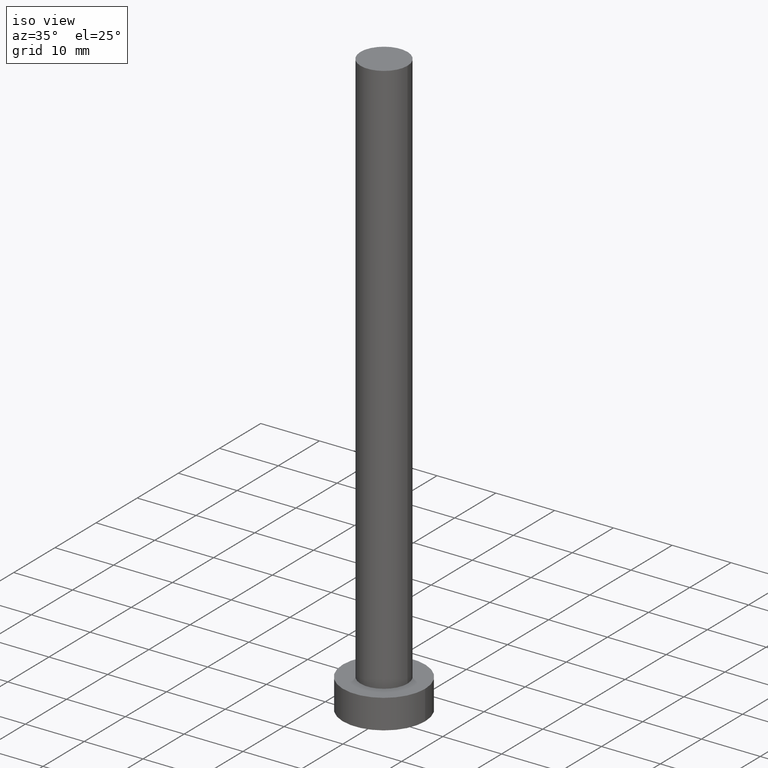
[diagram: clean part render]
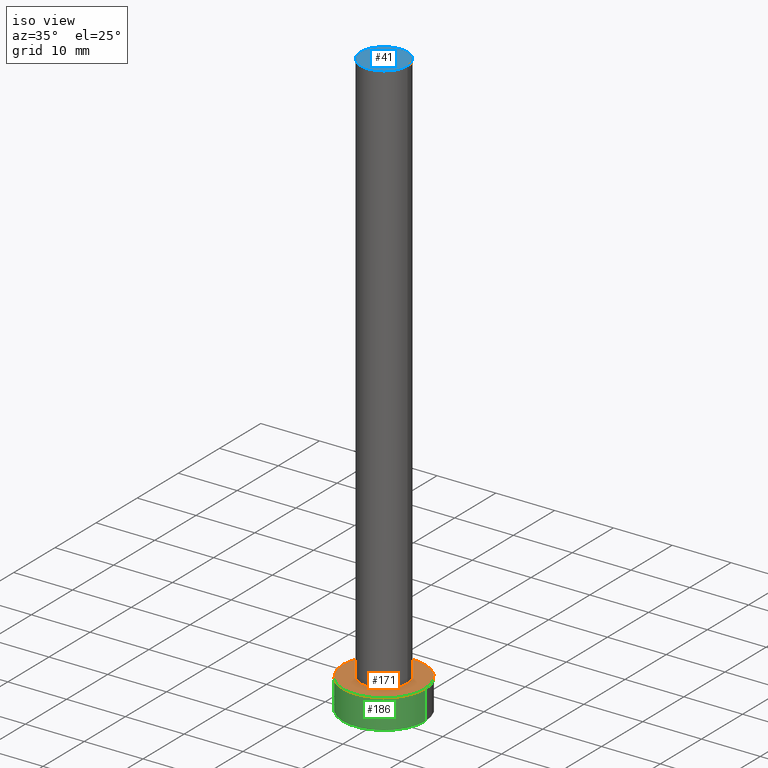
[diagram: same view with three faces highlighted in distinct colors, each labeled with its STEP entity id]
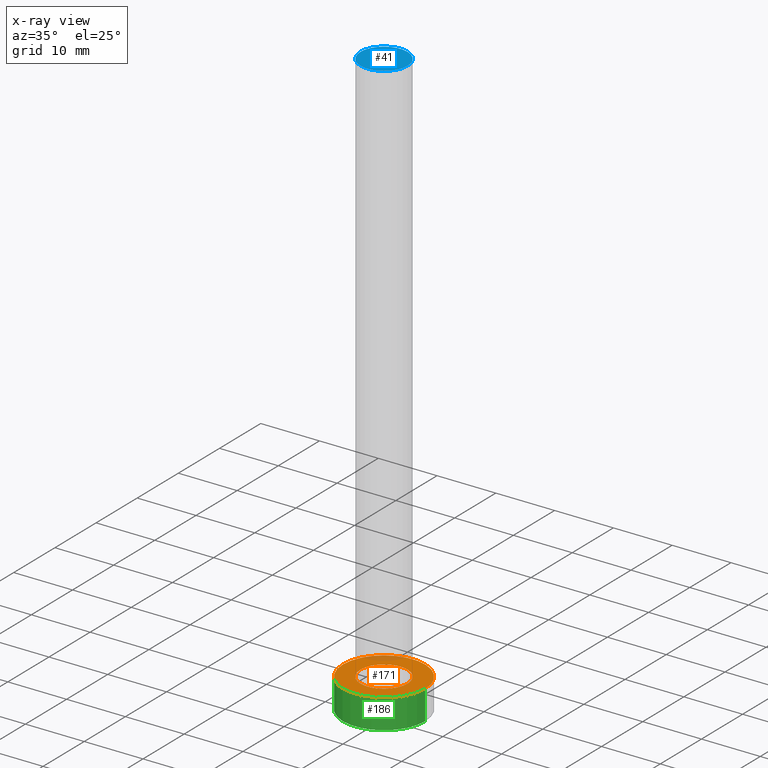
[diagram: x-ray of the same camera — body ghosted, the three highlighted faces saturated]
A machine part, iso view with three faces highlighted in distinct colors.
The next image is the same camera in x-ray (body ghosted, the three faces saturated) — at least one of them is partly hidden behind the body in this view.
Their STEP definitions:

[orange] entity #171 — the highlighted planar face has unit normal (0, 0, 1).
#11 = PLANE ( 'NONE',  #225 ) ;
#16 = VERTEX_POINT ( 'NONE', #173 ) ;
#24 = CIRCLE ( 'NONE', #157, 7.000000000000000000 ) ;
#25 = DIRECTION ( 'NONE',  ( 1.000000000000000000, 0.000000000000000000, 0.000000000000000000 ) ) ;
#61 = CARTESIAN_POINT ( 'NONE',  ( 0.000000000000000000, 0.000000000000000000, 5.000000000000000000 ) ) ;
#67 = CARTESIAN_POINT ( 'NONE',  ( 0.000000000000000000, 0.000000000000000000, 5.000000000000000000 ) ) ;
#69 = EDGE_CURVE ( 'NONE', #198, #204, #102, .T. ) ;
#70 = CARTESIAN_POINT ( 'NONE',  ( 4.000000000000000000, 4.898587196589412829E-16, 5.000000000000000000 ) ) ;
#77 = ORIENTED_EDGE ( 'NONE', *, *, #85, .F. ) ;
#85 = EDGE_CURVE ( 'NONE', #204, #198, #89, .T. ) ;
#88 = AXIS2_PLACEMENT_3D ( 'NONE', #141, #218, #180 ) ;
#89 = CIRCLE ( 'NONE', #88, 4.000000000000000000 ) ;
#90 = EDGE_LOOP ( 'NONE', ( #172, #222 ) ) ;
#97 = DIRECTION ( 'NONE',  ( 0.000000000000000000, 0.000000000000000000, 1.000000000000000000 ) ) ;
#101 = DIRECTION ( 'NONE',  ( 0.000000000000000000, 0.000000000000000000, 1.000000000000000000 ) ) ;
#102 = CIRCLE ( 'NONE', #203, 4.000000000000000000 ) ;
#106 = CARTESIAN_POINT ( 'NONE',  ( 7.000000000000000000, 8.572527594031473190E-16, 5.000000000000000000 ) ) ;
#115 = EDGE_CURVE ( 'NONE', #122, #16, #24, .T. ) ;
#122 = VERTEX_POINT ( 'NONE', #106 ) ;
#123 = CARTESIAN_POINT ( 'NONE',  ( 0.000000000000000000, 0.000000000000000000, 5.000000000000000000 ) ) ;
#125 = AXIS2_PLACEMENT_3D ( 'NONE', #123, #202, #25 ) ;
#141 = CARTESIAN_POINT ( 'NONE',  ( 0.000000000000000000, 0.000000000000000000, 5.000000000000000000 ) ) ;
#143 = DIRECTION ( 'NONE',  ( 1.000000000000000000, 0.000000000000000000, 0.000000000000000000 ) ) ;
#145 = CARTESIAN_POINT ( 'NONE',  ( 0.000000000000000000, 0.000000000000000000, 5.000000000000000000 ) ) ;
#146 = EDGE_LOOP ( 'NONE', ( #193, #77 ) ) ;
#148 = DIRECTION ( 'NONE',  ( 0.000000000000000000, 0.000000000000000000, 1.000000000000000000 ) ) ;
#157 = AXIS2_PLACEMENT_3D ( 'NONE', #67, #148, #143 ) ;
#159 = EDGE_CURVE ( 'NONE', #16, #122, #191, .T. ) ;
#162 = DIRECTION ( 'NONE',  ( 1.000000000000000000, 0.000000000000000000, 0.000000000000000000 ) ) ;
#171 = ADVANCED_FACE ( 'NONE', ( #228, #187 ), #11, .T. ) ;
#172 = ORIENTED_EDGE ( 'NONE', *, *, #159, .T. ) ;
#173 = CARTESIAN_POINT ( 'NONE',  ( -7.000000000000000000, 0.000000000000000000, 5.000000000000000000 ) ) ;
#180 = DIRECTION ( 'NONE',  ( 1.000000000000000000, 0.000000000000000000, 0.000000000000000000 ) ) ;
#187 = FACE_OUTER_BOUND ( 'NONE', #90, .T. ) ;
#191 = CIRCLE ( 'NONE', #125, 7.000000000000000000 ) ;
#193 = ORIENTED_EDGE ( 'NONE', *, *, #69, .F. ) ;
#198 = VERTEX_POINT ( 'NONE', #249 ) ;
#202 = DIRECTION ( 'NONE',  ( 0.000000000000000000, 0.000000000000000000, 1.000000000000000000 ) ) ;
#203 = AXIS2_PLACEMENT_3D ( 'NONE', #61, #97, #162 ) ;
#204 = VERTEX_POINT ( 'NONE', #70 ) ;
#218 = DIRECTION ( 'NONE',  ( 0.000000000000000000, 0.000000000000000000, 1.000000000000000000 ) ) ;
#222 = ORIENTED_EDGE ( 'NONE', *, *, #115, .T. ) ;
#223 = DIRECTION ( 'NONE',  ( 1.000000000000000000, 0.000000000000000000, -0.000000000000000000 ) ) ;
#225 = AXIS2_PLACEMENT_3D ( 'NONE', #145, #101, #223 ) ;
#228 = FACE_BOUND ( 'NONE', #146, .T. ) ;
#249 = CARTESIAN_POINT ( 'NONE',  ( -4.000000000000000000, 0.000000000000000000, 5.000000000000000000 ) ) ;

[blue] entity #41 — the highlighted planar face has unit normal (0, 0, 1).
#17 = DIRECTION ( 'NONE',  ( 0.000000000000000000, 0.000000000000000000, 1.000000000000000000 ) ) ;
#30 = PLANE ( 'NONE',  #116 ) ;
#31 = DIRECTION ( 'NONE',  ( 0.000000000000000000, 0.000000000000000000, 1.000000000000000000 ) ) ;
#35 = CIRCLE ( 'NONE', #182, 4.000000000000000000 ) ;
#36 = DIRECTION ( 'NONE',  ( 1.000000000000000000, 0.000000000000000000, 0.000000000000000000 ) ) ;
#41 = ADVANCED_FACE ( 'NONE', ( #50 ), #30, .T. ) ;
#50 = FACE_OUTER_BOUND ( 'NONE', #52, .T. ) ;
#52 = EDGE_LOOP ( 'NONE', ( #132, #174 ) ) ;
#68 = CARTESIAN_POINT ( 'NONE',  ( 4.000000000000000000, 4.898587196589412829E-16, 100.0000000000000000 ) ) ;
#81 = DIRECTION ( 'NONE',  ( 0.000000000000000000, 0.000000000000000000, 1.000000000000000000 ) ) ;
#100 = EDGE_CURVE ( 'NONE', #170, #112, #124, .T. ) ;
#108 = CARTESIAN_POINT ( 'NONE',  ( 0.000000000000000000, 0.000000000000000000, 100.0000000000000000 ) ) ;
#110 = DIRECTION ( 'NONE',  ( 1.000000000000000000, 0.000000000000000000, -0.000000000000000000 ) ) ;
#112 = VERTEX_POINT ( 'NONE', #68 ) ;
#116 = AXIS2_PLACEMENT_3D ( 'NONE', #108, #31, #110 ) ;
#121 = CARTESIAN_POINT ( 'NONE',  ( -4.000000000000000000, 0.000000000000000000, 100.0000000000000000 ) ) ;
#124 = CIRCLE ( 'NONE', #135, 4.000000000000000000 ) ;
#132 = ORIENTED_EDGE ( 'NONE', *, *, #100, .T. ) ;
#135 = AXIS2_PLACEMENT_3D ( 'NONE', #184, #81, #247 ) ;
#169 = CARTESIAN_POINT ( 'NONE',  ( 0.000000000000000000, 0.000000000000000000, 100.0000000000000000 ) ) ;
#170 = VERTEX_POINT ( 'NONE', #121 ) ;
#174 = ORIENTED_EDGE ( 'NONE', *, *, #246, .T. ) ;
#182 = AXIS2_PLACEMENT_3D ( 'NONE', #169, #17, #36 ) ;
#184 = CARTESIAN_POINT ( 'NONE',  ( 0.000000000000000000, 0.000000000000000000, 100.0000000000000000 ) ) ;
#246 = EDGE_CURVE ( 'NONE', #112, #170, #35, .T. ) ;
#247 = DIRECTION ( 'NONE',  ( 1.000000000000000000, 0.000000000000000000, 0.000000000000000000 ) ) ;

[green] entity #186 — the highlighted cylindrical surface (partial cylindrical patch) has radius 7 mm, axis along (-0, -0, -1).
#2 = DIRECTION ( 'NONE',  ( -0.000000000000000000, -0.000000000000000000, -1.000000000000000000 ) ) ;
#6 = AXIS2_PLACEMENT_3D ( 'NONE', #46, #82, #166 ) ;
#9 = AXIS2_PLACEMENT_3D ( 'NONE', #120, #201, #250 ) ;
#12 = CYLINDRICAL_SURFACE ( 'NONE', #6, 7.000000000000000000 ) ;
#16 = VERTEX_POINT ( 'NONE', #173 ) ;
#25 = DIRECTION ( 'NONE',  ( 1.000000000000000000, 0.000000000000000000, 0.000000000000000000 ) ) ;
#37 = ORIENTED_EDGE ( 'NONE', *, *, #130, .F. ) ;
#38 = EDGE_CURVE ( 'NONE', #16, #154, #151, .T. ) ;
#43 = CARTESIAN_POINT ( 'NONE',  ( 7.000000000000000000, 8.572527594031473190E-16, 5.000000000000000000 ) ) ;
#46 = CARTESIAN_POINT ( 'NONE',  ( 0.000000000000000000, 0.000000000000000000, 5.000000000000000000 ) ) ;
#64 = VECTOR ( 'NONE', #190, 1000.000000000000000 ) ;
#82 = DIRECTION ( 'NONE',  ( -0.000000000000000000, -0.000000000000000000, -1.000000000000000000 ) ) ;
#83 = EDGE_LOOP ( 'NONE', ( #37, #188, #104, #150 ) ) ;
#103 = CARTESIAN_POINT ( 'NONE',  ( -7.000000000000000000, 0.000000000000000000, 0.000000000000000000 ) ) ;
#104 = ORIENTED_EDGE ( 'NONE', *, *, #38, .T. ) ;
#106 = CARTESIAN_POINT ( 'NONE',  ( 7.000000000000000000, 8.572527594031473190E-16, 5.000000000000000000 ) ) ;
#114 = CARTESIAN_POINT ( 'NONE',  ( 7.000000000000000000, 8.572527594031473190E-16, 0.000000000000000000 ) ) ;
#120 = CARTESIAN_POINT ( 'NONE',  ( 0.000000000000000000, 0.000000000000000000, 0.000000000000000000 ) ) ;
#122 = VERTEX_POINT ( 'NONE', #106 ) ;
#123 = CARTESIAN_POINT ( 'NONE',  ( 0.000000000000000000, 0.000000000000000000, 5.000000000000000000 ) ) ;
#125 = AXIS2_PLACEMENT_3D ( 'NONE', #123, #202, #25 ) ;
#130 = EDGE_CURVE ( 'NONE', #122, #227, #221, .T. ) ;
#147 = CIRCLE ( 'NONE', #9, 7.000000000000000000 ) ;
#150 = ORIENTED_EDGE ( 'NONE', *, *, #220, .T. ) ;
#151 = LINE ( 'NONE', #175, #155 ) ;
#154 = VERTEX_POINT ( 'NONE', #103 ) ;
#155 = VECTOR ( 'NONE', #2, 1000.000000000000000 ) ;
#159 = EDGE_CURVE ( 'NONE', #16, #122, #191, .T. ) ;
#166 = DIRECTION ( 'NONE',  ( -1.000000000000000000, 0.000000000000000000, 0.000000000000000000 ) ) ;
#173 = CARTESIAN_POINT ( 'NONE',  ( -7.000000000000000000, 0.000000000000000000, 5.000000000000000000 ) ) ;
#175 = CARTESIAN_POINT ( 'NONE',  ( -7.000000000000000000, 0.000000000000000000, 5.000000000000000000 ) ) ;
#186 = ADVANCED_FACE ( 'NONE', ( #189 ), #12, .T. ) ;
#188 = ORIENTED_EDGE ( 'NONE', *, *, #159, .F. ) ;
#189 = FACE_OUTER_BOUND ( 'NONE', #83, .T. ) ;
#190 = DIRECTION ( 'NONE',  ( -0.000000000000000000, -0.000000000000000000, -1.000000000000000000 ) ) ;
#191 = CIRCLE ( 'NONE', #125, 7.000000000000000000 ) ;
#201 = DIRECTION ( 'NONE',  ( 0.000000000000000000, 0.000000000000000000, 1.000000000000000000 ) ) ;
#202 = DIRECTION ( 'NONE',  ( 0.000000000000000000, 0.000000000000000000, 1.000000000000000000 ) ) ;
#220 = EDGE_CURVE ( 'NONE', #154, #227, #147, .T. ) ;
#221 = LINE ( 'NONE', #43, #64 ) ;
#227 = VERTEX_POINT ( 'NONE', #114 ) ;
#250 = DIRECTION ( 'NONE',  ( 1.000000000000000000, 0.000000000000000000, 0.000000000000000000 ) ) ;